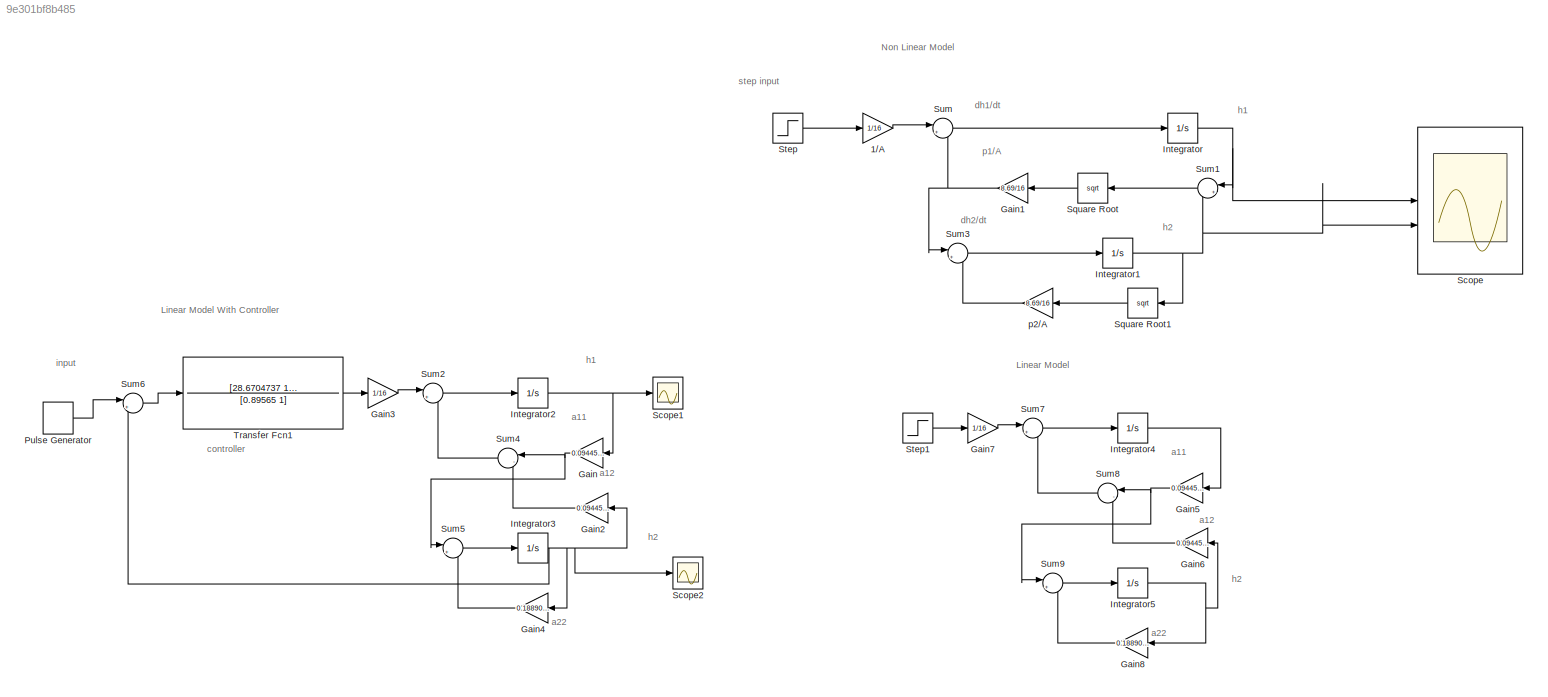
MODEL slx_9e301bf8b485
KIND model
CONFIG AbsTol = auto
CONFIG EnableMultiTasking = off
CONFIG FixedStep = auto
CONFIG MaxStep = auto
CONFIG MinStep = auto
CONFIG RelTol = 1e-3
CONFIG SampleTimeConstraint = Unconstrained
CONFIG SolverName = VariableStepAuto
CONFIG StartTime = 0.0
CONFIG StopTime = 200
BLOCK [Gain] 1//A
  Gain = 1/16
BLOCK [Gain] Gain
  Gain = 0.0944548
  NameLocation = top
BLOCK [Gain] Gain1
  Gain = 8.69/16
  NameLocation = top
BLOCK [Gain] Gain2
  Gain = 0.0944548
  NameLocation = top
BLOCK [Gain] Gain3
  Gain = 1/16
BLOCK [Gain] Gain4
  Gain = 0.1889096
  NameLocation = top
BLOCK [Gain] Gain5
  Gain = 0.0944548
  NameLocation = top
BLOCK [Gain] Gain6
  Gain = 0.0944548
  NameLocation = top
BLOCK [Gain] Gain7
  Gain = 1/16
BLOCK [Gain] Gain8
  Gain = 0.1889096
  NameLocation = top
BLOCK [Integrator] Integrator
  InitialCondition = 15
BLOCK [Integrator] Integrator1
  InitialCondition = 10
BLOCK [Integrator] Integrator2
  InitialCondition = 15
BLOCK [Integrator] Integrator3
  InitialCondition = 10
BLOCK [Integrator] Integrator4
  InitialCondition = 15
BLOCK [Integrator] Integrator5
  InitialCondition = 10
BLOCK [DiscretePulseGenerator] Pulse Generator
  Amplitude = 25
  Period = 70
  PulseType = Time based
  PulseWidth = 50
BLOCK [Scope] Scope
  Floating = off
  NumInputPorts = 4
  ScopeSpecificationString = Simulink.scopes.TimeScopeBlockCfg('CurrentConfiguration', extmgr.ConfigurationSet(extmgr.Configuration('Core','General UI',true),extmgr.Configuration('Core','Source UI',true),extmgr.Configuration('Sources','WiredSimulink',true,'DataLoggingVariableName','ScopeData1'),extmgr.Configuration('Visuals','Time Domain',true,'SerializedDisplays',{struct('MinYLimReal','14.80593','MaxYLimReal','16.74659','YLa...<+3485ch>
BLOCK [Scope] Scope1
  Floating = off
  NumInputPorts = 1
  ScopeSpecificationString = Simulink.scopes.TimeScopeBlockCfg('CurrentConfiguration', extmgr.ConfigurationSet(extmgr.Configuration('Core','General UI',true),extmgr.Configuration('Core','Source UI',true),extmgr.Configuration('Sources','WiredSimulink',true,'DataLoggingVariableName','ScopeData1'),extmgr.Configuration('Visuals','Time Domain',true),extmgr.Configuration('Tools','Plot Navigation',true),extmgr.Configuration('Tools',...<+100ch>
BLOCK [Scope] Scope2
  Floating = off
  NumInputPorts = 1
  ScopeSpecificationString = Simulink.scopes.TimeScopeBlockCfg('CurrentConfiguration', extmgr.ConfigurationSet(extmgr.Configuration('Core','General UI',true,'FigureColor',[0 0 0]),extmgr.Configuration('Core','Source UI',true),extmgr.Configuration('Sources','WiredSimulink',true,'DataLoggingVariableName','ScopeData2'),extmgr.Configuration('Visuals','Time Domain',true,'SerializedDisplays',{struct('MinYLimReal','-6.31837','MaxYLi...<+1702ch>
BLOCK [Sqrt] Square Root
  NameLocation = top
BLOCK [Sqrt] Square Root1
  NameLocation = top
BLOCK [Step] Step
  After = 25
  SampleTime = 0
  Time = 0
BLOCK [Step] Step1
  After = 25
  SampleTime = 0
BLOCK [Sum] Sum
  Inputs = |+-
BLOCK [Sum] Sum1
  Inputs = |+-
  NameLocation = top
BLOCK [Sum] Sum2
  Inputs = |++
BLOCK [Sum] Sum3
  Inputs = |+-
BLOCK [Sum] Sum4
  Inputs = |-+
  NameLocation = top
BLOCK [Sum] Sum5
  Inputs = |+-
  NameLocation = top
BLOCK [Sum] Sum6
  Inputs = |+-
BLOCK [Sum] Sum7
  Inputs = |++
BLOCK [Sum] Sum8
  Inputs = |-+
  NameLocation = top
BLOCK [Sum] Sum9
  Inputs = |+-
  NameLocation = top
BLOCK [TransferFcn] Transfer Fcn1
  Denominator = [0.89565 1]
  Numerator = [28.6704737 15.85231]
BLOCK [Gain] p2//A
  Gain = 8.69/16
  NameLocation = top
ANNOTATION (root): Linear Model With Controller
ANNOTATION (root): Linear Model
ANNOTATION (root): Non Linear Mode l
ANNOTATION (root): a11
ANNOTATION (root): a12
ANNOTATION (root): a22
ANNOTATION (root): controller
ANNOTATION (root): dh1/dt
ANNOTATION (root): dh2/dt
ANNOTATION (root): h1
ANNOTATION (root): h2
ANNOTATION (root): input
ANNOTATION (root): p1/A
ANNOTATION (root): step input
LINE 1//A:1 -> Sum:1
NET Gain1:1 -> Sum3:1, Sum:2
LINE Gain2:1 -> Sum4:2
LINE Gain3:1 -> Sum2:1
LINE Gain4:1 -> Sum5:2
NET Gain5:1 -> Sum8:1, Sum9:1
LINE Gain6:1 -> Sum8:2
LINE Gain7:1 -> Sum7:1
LINE Gain8:1 -> Sum9:2
NET Gain:1 -> Sum4:1, Sum5:1
NET Integrator1:1 -> Scope:2, Square Root1:1, Sum1:2
NET Integrator2:1 -> Gain:1, Scope1:1
NET Integrator3:1 -> Gain2:1, Gain4:1, Scope2:1, Sum6:2
LINE Integrator4:1 -> Gain5:1
NET Integrator5:1 -> Gain6:1, Gain8:1
NET Integrator:1 -> Scope:1, Sum1:1
LINE Pulse Generator:1 -> Sum6:1
LINE Square Root1:1 -> p2//A:1
LINE Square Root:1 -> Gain1:1
LINE Step1:1 -> Gain7:1
LINE Step:1 -> 1//A:1
LINE Sum1:1 -> Square Root:1
LINE Sum2:1 -> Integrator2:1
LINE Sum3:1 -> Integrator1:1
LINE Sum4:1 -> Sum2:2
LINE Sum5:1 -> Integrator3:1
LINE Sum6:1 -> Transfer Fcn1:1
LINE Sum7:1 -> Integrator4:1
LINE Sum8:1 -> Sum7:2
LINE Sum9:1 -> Integrator5:1
LINE Sum:1 -> Integrator:1
LINE Transfer Fcn1:1 -> Gain3:1
LINE p2//A:1 -> Sum3:2
note: NET lines group one-source signal fan-out (src -> all destinations, sorted); 1:1 wires keep LINE
